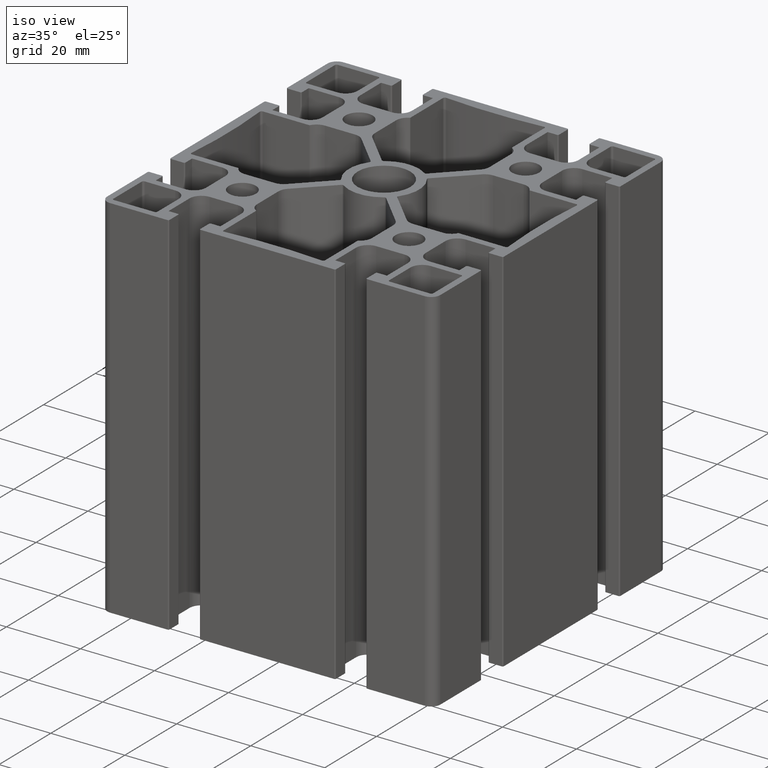
[diagram: clean part render]
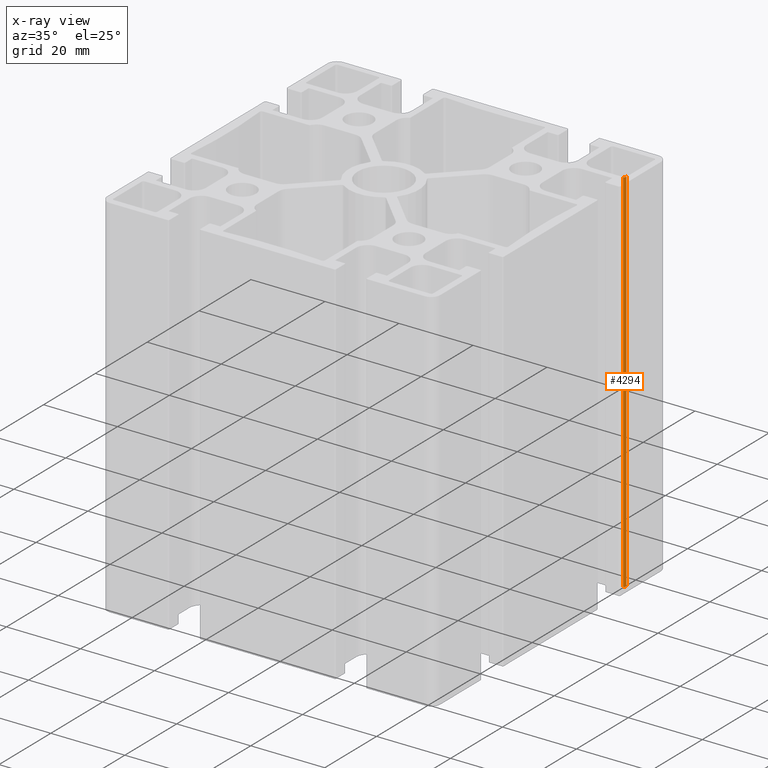
[diagram: x-ray — body ghosted, one internal face saturated and labeled with its STEP entity id]
A machine part, iso view, then the same camera in x-ray: the body is ghosted and one INTERNAL B-rep face — a face not visible from any outside direction — is saturated and labeled: STEP entity #4294.
In plain terms, the highlighted cylindrical surface (edge-blend (fillet) strip) has radius 0.5 mm, axis along (0, 0, 1).
Its self-contained STEP definition (entity closure, byte-faithful):
#198=FACE_OUTER_BOUND('',#421,.T.);
#421=EDGE_LOOP('',(#2991,#2992,#2993,#2994));
#714=LINE('',#6530,#1146);
#716=LINE('',#6536,#1148);
#1146=VECTOR('',#5193,100.);
#1148=VECTOR('',#5199,100.);
#1547=CIRCLE('',#4570,0.500000000000007);
#1548=CIRCLE('',#4571,0.500000000000007);
#1819=VERTEX_POINT('',#6527);
#1820=VERTEX_POINT('',#6529);
#1821=VERTEX_POINT('',#6533);
#1822=VERTEX_POINT('',#6535);
#2296=EDGE_CURVE('',#1819,#1820,#714,.T.);
#2298=EDGE_CURVE('',#1819,#1821,#1547,.T.);
#2299=EDGE_CURVE('',#1821,#1822,#716,.T.);
#2300=EDGE_CURVE('',#1820,#1822,#1548,.T.);
#2991=ORIENTED_EDGE('',*,*,#2298,.T.);
#2992=ORIENTED_EDGE('',*,*,#2299,.T.);
#2993=ORIENTED_EDGE('',*,*,#2300,.F.);
#2994=ORIENTED_EDGE('',*,*,#2296,.F.);
#4164=CYLINDRICAL_SURFACE('',#4569,0.500000000000007);
#4294=ADVANCED_FACE('',(#198),#4164,.F.);
#4569=AXIS2_PLACEMENT_3D('',#6532,#5195,#5196);
#4570=AXIS2_PLACEMENT_3D('',#6534,#5197,#5198);
#4571=AXIS2_PLACEMENT_3D('',#6537,#5200,#5201);
#5193=DIRECTION('',(0.,0.,-1.));
#5195=DIRECTION('center_axis',(0.,0.,1.));
#5196=DIRECTION('ref_axis',(0.,1.,0.));
#5197=DIRECTION('center_axis',(0.,0.,1.));
#5198=DIRECTION('ref_axis',(0.,1.,0.));
#5199=DIRECTION('',(0.,0.,-1.));
#5200=DIRECTION('center_axis',(0.,0.,1.));
#5201=DIRECTION('ref_axis',(0.,1.,0.));
#6527=CARTESIAN_POINT('',(42.7,31.3,100.));
#6529=CARTESIAN_POINT('',(42.7,31.3,0.));
#6530=CARTESIAN_POINT('',(42.7,31.3,0.));
#6532=CARTESIAN_POINT('Origin',(42.7,31.8,0.));
#6533=CARTESIAN_POINT('',(43.2,31.8,100.));
#6534=CARTESIAN_POINT('Origin',(42.7,31.8,100.));
#6535=CARTESIAN_POINT('',(43.2,31.8,0.));
#6536=CARTESIAN_POINT('',(43.2,31.8,0.));
#6537=CARTESIAN_POINT('Origin',(42.7,31.8,0.));